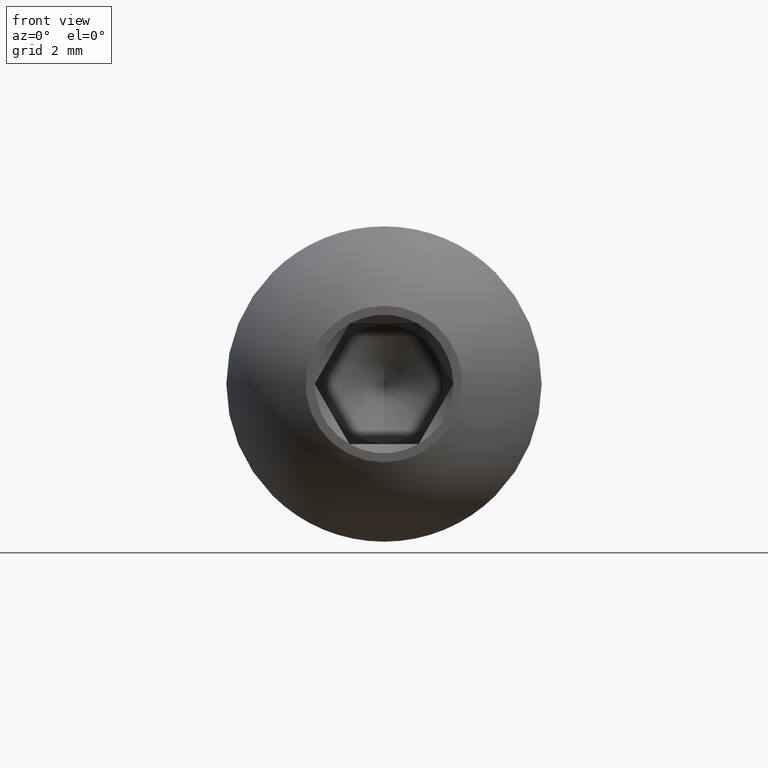
[diagram: clean part render]
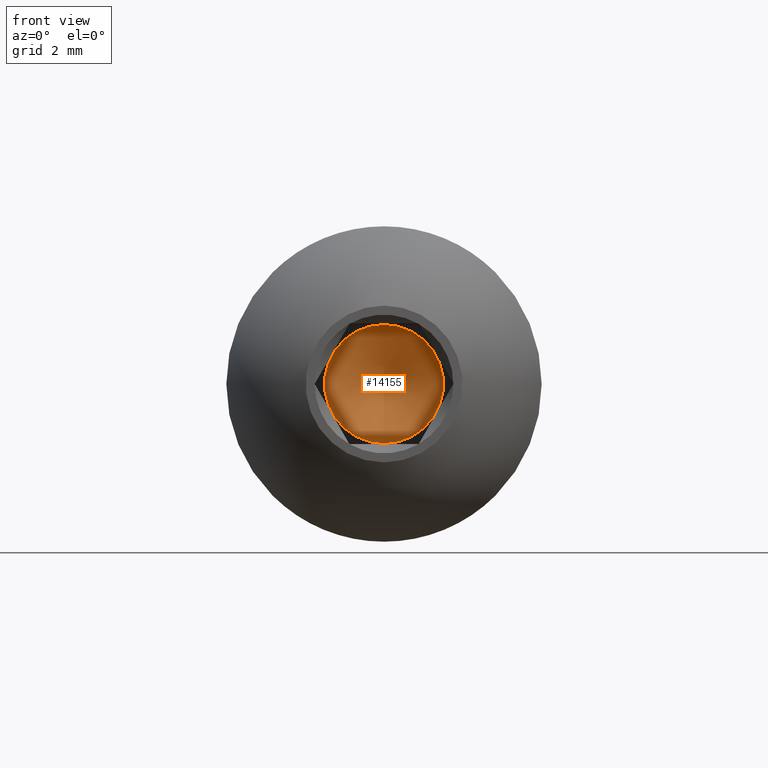
[diagram: same view with one face highlighted and labeled with its STEP entity id]
A machine part, front view. The second image highlights one B-rep face of the part: STEP entity #14155.
In plain terms, the highlighted conical surface has half-angle 59 deg.
Its self-contained STEP definition (entity closure, byte-faithful):
#270 = DIRECTION ( 'NONE',  ( -0.0000000000000000000, 1.000000000000000000, -0.0000000000000000000 ) ) ;
#1767 = CARTESIAN_POINT ( 'NONE',  ( 0.0000000000000000000, 2.062499999999999600, 0.0000000000000000000 ) ) ;
#2660 = CARTESIAN_POINT ( 'NONE',  ( 0.0000000000000000000, 2.062499999999999600, -1.980000000000000000 ) ) ;
#3988 = EDGE_LOOP ( 'NONE', ( #7009 ) ) ;
#4206 = DIRECTION ( 'NONE',  ( 0.0000000000000000000, 0.0000000000000000000, -1.000000000000000000 ) ) ;
#5447 = CIRCLE ( 'NONE', #13483, 1.980000000000000000 ) ;
#5459 = CARTESIAN_POINT ( 'NONE',  ( 0.0000000000000000000, 2.062499999999999100, 0.0000000000000000000 ) ) ;
#7009 = ORIENTED_EDGE ( 'NONE', *, *, #12818, .F. ) ;
#7853 = FACE_OUTER_BOUND ( 'NONE', #3988, .T. ) ;
#8181 = VERTEX_POINT ( 'NONE', #2660 ) ;
#9758 = DIRECTION ( 'NONE',  ( 0.0000000000000000000, 0.0000000000000000000, -1.000000000000000000 ) ) ;
#11753 = CONICAL_SURFACE ( 'NONE', #13819, 1.979999999999999500, 1.029744258676657400 ) ;
#12818 = EDGE_CURVE ( 'NONE', #8181, #8181, #5447, .T. ) ;
#13483 = AXIS2_PLACEMENT_3D ( 'NONE', #1767, #270, #9758 ) ;
#13802 = DIRECTION ( 'NONE',  ( -0.0000000000000000000, -1.000000000000000000, -0.0000000000000000000 ) ) ;
#13819 = AXIS2_PLACEMENT_3D ( 'NONE', #5459, #13802, #4206 ) ;
#14155 = ADVANCED_FACE ( 'NONE', ( #7853 ), #11753, .F. ) ;